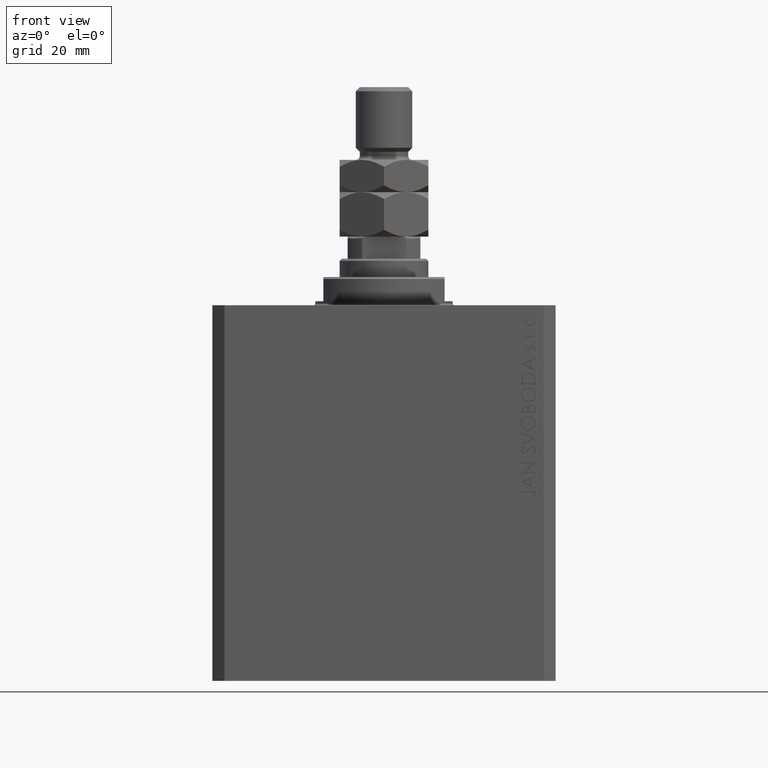
[diagram: clean part render]
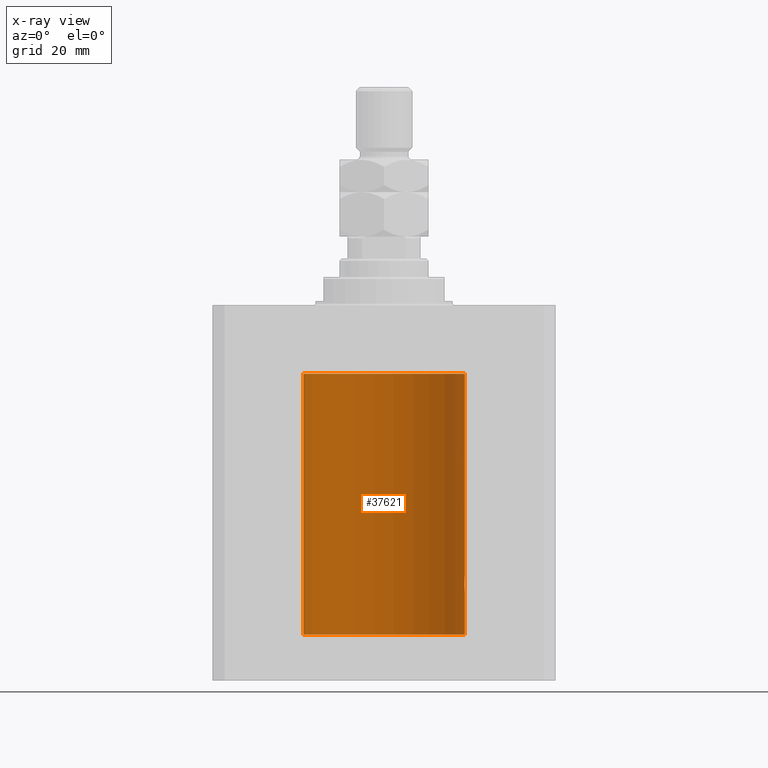
[diagram: x-ray — body ghosted, one internal face saturated and labeled with its STEP entity id]
A machine part, front view, then the same camera in x-ray: the body is ghosted and one INTERNAL B-rep face — a face not visible from any outside direction — is saturated and labeled: STEP entity #37621.
In plain terms, the highlighted cylindrical surface (partial cylindrical patch) has radius 20 mm, axis along (0, 0, 1).
Its self-contained STEP definition (entity closure, byte-faithful):
#29 = EDGE_CURVE ( 'NONE', #980, #230, #45699, .T. ) ;
#230 = VERTEX_POINT ( 'NONE', #29522 ) ;
#832 = EDGE_CURVE ( 'NONE', #32677, #12675, #10774, .T. ) ;
#980 = VERTEX_POINT ( 'NONE', #7179 ) ;
#1078 = CARTESIAN_POINT ( 'NONE',  ( 19.99867993937906618, 0.2631387813862826053, -67.01308095003093968 ) ) ;
#1507 = VERTEX_POINT ( 'NONE', #31985 ) ;
#1675 = ORIENTED_EDGE ( 'NONE', *, *, #22973, .T. ) ;
#2352 = DIRECTION ( 'NONE',  ( 1.000000000000000000, 0.000000000000000000, 0.000000000000000000 ) ) ;
#2537 = CARTESIAN_POINT ( 'NONE',  ( 19.95643710845398289, 1.322557776536546825, -70.50593841146684326 ) ) ;
#2599 = DIRECTION ( 'NONE',  ( -0.000000000000000000, -0.000000000000000000, 1.000000000000000000 ) ) ;
#2805 = ORIENTED_EDGE ( 'NONE', *, *, #16168, .F. ) ;
#4807 = CARTESIAN_POINT ( 'NONE',  ( 19.97511131722831479, 1.003336743019912936, -67.26498565174387068 ) ) ;
#7179 = CARTESIAN_POINT ( 'NONE',  ( 20.00000000000000000, 0.000000000000000000, -17.00000000000000000 ) ) ;
#7432 = CARTESIAN_POINT ( 'NONE',  ( 20.00000000000000000, 0.1305404422160218736, -66.99999999999998579 ) ) ;
#7707 = CARTESIAN_POINT ( 'NONE',  ( 19.99868904672146996, 0.2623009746877838499, -70.98700898509812873 ) ) ;
#7988 = ORIENTED_EDGE ( 'NONE', *, *, #8485, .F. ) ;
#8260 = ORIENTED_EDGE ( 'NONE', *, *, #35412, .T. ) ;
#8293 = CARTESIAN_POINT ( 'NONE',  ( 19.98998987637478209, 0.6441982143731844745, -67.10205654639887030 ) ) ;
#8485 = EDGE_CURVE ( 'NONE', #10331, #230, #45414, .T. ) ;
#8956 = DIRECTION ( 'NONE',  ( -0.000000000000000000, -0.000000000000000000, 1.000000000000000000 ) ) ;
#9355 = DIRECTION ( 'NONE',  ( 0.000000000000000000, 0.000000000000000000, 1.000000000000000000 ) ) ;
#9781 = CARTESIAN_POINT ( 'NONE',  ( 19.91911433329477177, 1.797615436563606561, -68.11357106075777779 ) ) ;
#10331 = VERTEX_POINT ( 'NONE', #26795 ) ;
#10625 = CARTESIAN_POINT ( 'NONE',  ( 0.000000000000000000, 0.000000000000000000, -81.59999999999999432 ) ) ;
#10704 = CARTESIAN_POINT ( 'NONE',  ( 19.99366205580918887, 0.5195372307044503479, -67.06423906555804137 ) ) ;
#10774 = B_SPLINE_CURVE_WITH_KNOTS ( 'NONE', 3,
 ( #39602, #19113, #7707, #18417, #34440, #37474, #33983, #19791, #2537, #26768, #19569, #23283, #20251, #23729 ),
 .UNSPECIFIED., .F., .F.,
 ( 4, 2, 2, 2, 2, 2, 4 ),
 ( 0.000000000000000000, 0.0003911418372936024675, 0.0007822836745872047181, 0.001173425511880806914, 0.001564567349174409219, 0.002346851023761584339, 0.003129134698348759892 ),
 .UNSPECIFIED. ) ;
#11733 = B_SPLINE_CURVE_WITH_KNOTS ( 'NONE', 3,
 ( #37939, #27021, #17225, #41660, #41215, #9781, #23981, #31422, #35371, #36705, #14430, #4807, #31880, #8293, #10704, #1078, #7432, #11807 ),
 .UNSPECIFIED., .F., .F.,
 ( 4, 2, 2, 2, 2, 2, 2, 2, 4 ),
 ( 0.003129134698348759892, 0.003520095305221480463, 0.003911055912094201469, 0.004302016518966922040, 0.004692977125839642612, 0.005083937732712363183, 0.005474898339585083755, 0.005865858946457804327, 0.006256819553330524898 ),
 .UNSPECIFIED. ) ;
#11807 = CARTESIAN_POINT ( 'NONE',  ( 20.00000000000000000, -1.553109350199128042E-23, -67.00000000000000000 ) ) ;
#12397 = CARTESIAN_POINT ( 'NONE',  ( 0.000000000000000000, 0.000000000000000000, -81.59999999999999432 ) ) ;
#12675 = VERTEX_POINT ( 'NONE', #22126 ) ;
#14182 = VECTOR ( 'NONE', #2599, 1000.000000000000000 ) ;
#14430 = CARTESIAN_POINT ( 'NONE',  ( 19.96305842179988588, 1.219858681717333138, -67.40974712539563996 ) ) ;
#14814 = FACE_OUTER_BOUND ( 'NONE', #22557, .T. ) ;
#16168 = EDGE_CURVE ( 'NONE', #1507, #10331, #28979, .T. ) ;
#17225 = CARTESIAN_POINT ( 'NONE',  ( 19.90107458412648711, 1.986930174329755161, -68.73692013941790435 ) ) ;
#18073 = CYLINDRICAL_SURFACE ( 'NONE', #36547, 20.00000000000000000 ) ;
#18417 = CARTESIAN_POINT ( 'NONE',  ( 19.99369727434158861, 0.5181068333511500423, -70.93612288282996303 ) ) ;
#19113 = CARTESIAN_POINT ( 'NONE',  ( 20.00000000000000000, 0.1322642052205943719, -71.00000000000004263 ) ) ;
#19569 = CARTESIAN_POINT ( 'NONE',  ( 19.92371056170336630, 1.748080295468898537, -70.00603865937250703 ) ) ;
#19791 = CARTESIAN_POINT ( 'NONE',  ( 19.96307037068151402, 1.219701915132744396, -70.59041349350364669 ) ) ;
#20251 = CARTESIAN_POINT ( 'NONE',  ( 19.89974874213236333, 2.000000000000336176, -69.26114132155831271 ) ) ;
#21704 = VERTEX_POINT ( 'NONE', #23491 ) ;
#21818 = LINE ( 'NONE', #36004, #32767 ) ;
#22126 = CARTESIAN_POINT ( 'NONE',  ( 19.89974874213236333, 2.000000000000336620, -69.00000000000000000 ) ) ;
#22557 = EDGE_LOOP ( 'NONE', ( #7988, #2805, #1675, #32892, #8260, #44554, #27632 ) ) ;
#22973 = EDGE_CURVE ( 'NONE', #1507, #32677, #30147, .T. ) ;
#23283 = CARTESIAN_POINT ( 'NONE',  ( 19.90520750556430940, 1.947496194184494378, -69.52455416993456083 ) ) ;
#23491 = CARTESIAN_POINT ( 'NONE',  ( 20.00000000000000000, -1.553109350199128042E-23, -67.00000000000000000 ) ) ;
#23729 = CARTESIAN_POINT ( 'NONE',  ( 19.89974874213236333, 2.000000000000336620, -69.00000000000000000 ) ) ;
#23981 = CARTESIAN_POINT ( 'NONE',  ( 19.92473605353366040, 1.734984354167257159, -67.99660905888589468 ) ) ;
#26768 = CARTESIAN_POINT ( 'NONE',  ( 19.93682487288204896, 1.599118048130817593, -70.22917035181221479 ) ) ;
#26795 = CARTESIAN_POINT ( 'NONE',  ( -20.00000000000000000, 2.449293598294706513E-15, -81.59999999999999432 ) ) ;
#27021 = CARTESIAN_POINT ( 'NONE',  ( 19.89974874213236689, 2.000000000000336620, -68.86948983741757502 ) ) ;
#27632 = ORIENTED_EDGE ( 'NONE', *, *, #29, .T. ) ;
#28319 = DIRECTION ( 'NONE',  ( -0.000000000000000000, -0.000000000000000000, 1.000000000000000000 ) ) ;
#28821 = VECTOR ( 'NONE', #8956, 1000.000000000000000 ) ;
#28979 = CIRCLE ( 'NONE', #33427, 20.00000000000000000 ) ;
#29011 = DIRECTION ( 'NONE',  ( 1.000000000000000000, 0.000000000000000000, 0.000000000000000000 ) ) ;
#29522 = CARTESIAN_POINT ( 'NONE',  ( -20.00000000000000000, 2.449293598294706513E-15, -17.00000000000000000 ) ) ;
#30147 = LINE ( 'NONE', #40847, #28821 ) ;
#30551 = DIRECTION ( 'NONE',  ( 1.000000000000000000, 0.000000000000000000, 0.000000000000000000 ) ) ;
#31321 = EDGE_CURVE ( 'NONE', #21704, #980, #21818, .T. ) ;
#31422 = CARTESIAN_POINT ( 'NONE',  ( 19.93681418096177183, 1.590194273034202688, -67.78006300821553509 ) ) ;
#31601 = AXIS2_PLACEMENT_3D ( 'NONE', #41027, #41476, #30551 ) ;
#31880 = CARTESIAN_POINT ( 'NONE',  ( 19.98071536551674754, 0.8863972468204365240, -67.20236805399484581 ) ) ;
#31985 = CARTESIAN_POINT ( 'NONE',  ( 20.00000000000000000, 0.000000000000000000, -81.59999999999999432 ) ) ;
#32498 = DIRECTION ( 'NONE',  ( -0.000000000000000000, -0.000000000000000000, 1.000000000000000000 ) ) ;
#32579 = CARTESIAN_POINT ( 'NONE',  ( 20.00000000000000000, 0.000000000000000000, -71.00000000000001421 ) ) ;
#32677 = VERTEX_POINT ( 'NONE', #32579 ) ;
#32767 = VECTOR ( 'NONE', #28319, 1000.000000000000000 ) ;
#32892 = ORIENTED_EDGE ( 'NONE', *, *, #832, .T. ) ;
#33427 = AXIS2_PLACEMENT_3D ( 'NONE', #12397, #9355, #2352 ) ;
#33983 = CARTESIAN_POINT ( 'NONE',  ( 19.97516523393783316, 1.002309963754523858, -70.73564471556110789 ) ) ;
#34440 = CARTESIAN_POINT ( 'NONE',  ( 19.98995738555794333, 0.6452086089795033841, -70.89760345360160443 ) ) ;
#35371 = CARTESIAN_POINT ( 'NONE',  ( 19.94332236886613074, 1.507531922383789524, -67.67909949904073130 ) ) ;
#35412 = EDGE_CURVE ( 'NONE', #12675, #21704, #11733, .T. ) ;
#36004 = CARTESIAN_POINT ( 'NONE',  ( 20.00000000000000000, 0.000000000000000000, -81.59999999999999432 ) ) ;
#36547 = AXIS2_PLACEMENT_3D ( 'NONE', #10625, #32498, #29011 ) ;
#36705 = CARTESIAN_POINT ( 'NONE',  ( 19.95655800881796083, 1.320814917468111194, -67.49239309359697359 ) ) ;
#37474 = CARTESIAN_POINT ( 'NONE',  ( 19.98066923111604964, 0.8874387315505222196, -70.79712145220240416 ) ) ;
#37621 = ADVANCED_FACE ( 'NONE', ( #14814 ), #18073, .F. ) ;
#37939 = CARTESIAN_POINT ( 'NONE',  ( 19.89974874213236333, 2.000000000000336620, -69.00000000000000000 ) ) ;
#39602 = CARTESIAN_POINT ( 'NONE',  ( 20.00000000000000000, 0.000000000000000000, -71.00000000000001421 ) ) ;
#40847 = CARTESIAN_POINT ( 'NONE',  ( 20.00000000000000000, 0.000000000000000000, -81.59999999999999432 ) ) ;
#41027 = CARTESIAN_POINT ( 'NONE',  ( 0.000000000000000000, 0.000000000000000000, -17.00000000000000000 ) ) ;
#41215 = CARTESIAN_POINT ( 'NONE',  ( 19.90980722176544049, 1.897923463361389285, -68.35574535366808391 ) ) ;
#41476 = DIRECTION ( 'NONE',  ( 0.000000000000000000, 0.000000000000000000, 1.000000000000000000 ) ) ;
#41660 = CARTESIAN_POINT ( 'NONE',  ( 19.90611763847108762, 1.935753518394741635, -68.48042243434849752 ) ) ;
#44554 = ORIENTED_EDGE ( 'NONE', *, *, #31321, .T. ) ;
#45191 = CARTESIAN_POINT ( 'NONE',  ( -20.00000000000000000, 2.449293598294706513E-15, -81.59999999999999432 ) ) ;
#45414 = LINE ( 'NONE', #45191, #14182 ) ;
#45699 = CIRCLE ( 'NONE', #31601, 20.00000000000000000 ) ;